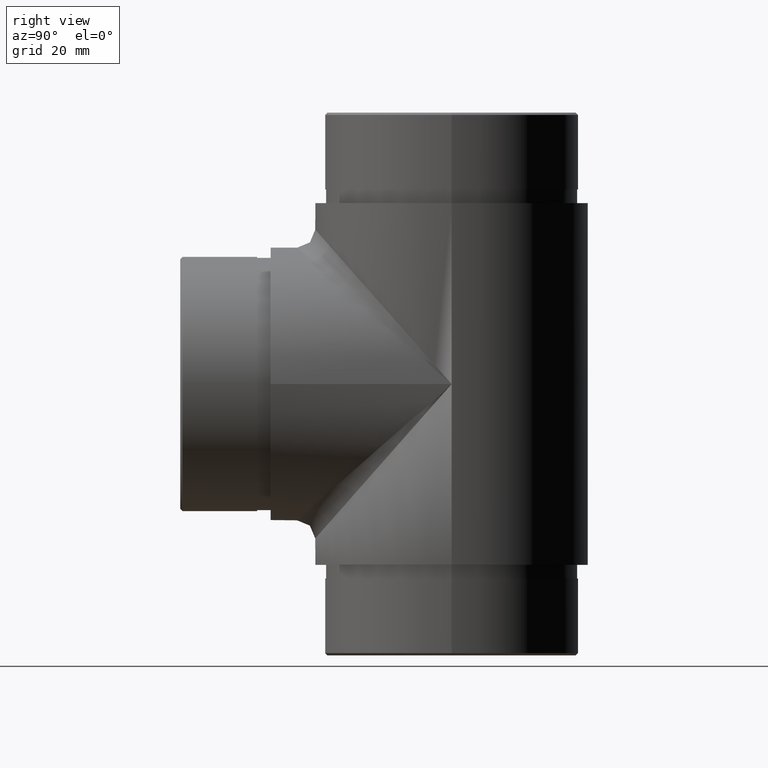
[diagram: clean part render]
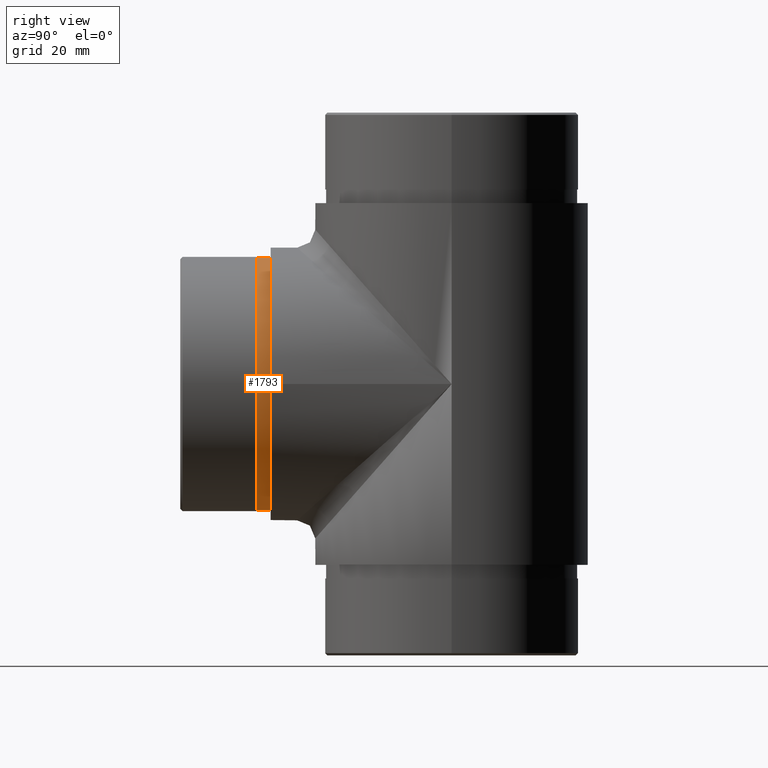
[diagram: same view with one face highlighted and labeled with its STEP entity id]
A machine part, right view. The second image highlights one B-rep face of the part: STEP entity #1793.
In plain terms, the highlighted cylindrical surface (bore or boss wall) has radius 27.9 mm, axis along (-0, 1, -0).
Its self-contained STEP definition (entity closure, byte-faithful):
#380 = CARTESIAN_POINT ( 'NONE',  ( 0.0000000000000000000, 20.00000000000000000, 27.89999999999999900 ) ) ;
#865 = EDGE_CURVE ( 'NONE', #10295, #10295, #2266, .T. ) ;
#1167 = CARTESIAN_POINT ( 'NONE',  ( 0.0000000000000000000, 17.00000000000000000, 0.0000000000000000000 ) ) ;
#1595 = AXIS2_PLACEMENT_3D ( 'NONE', #3104, #9912, #6025 ) ;
#1793 = ADVANCED_FACE ( 'NONE', ( #11960, #4394 ), #7281, .T. ) ;
#1810 = VERTEX_POINT ( 'NONE', #2202 ) ;
#2017 = DIRECTION ( 'NONE',  ( 0.0000000000000000000, 0.0000000000000000000, -1.000000000000000000 ) ) ;
#2202 = CARTESIAN_POINT ( 'NONE',  ( 0.0000000000000000000, 17.00000000000000000, -27.89999999999999900 ) ) ;
#2266 = CIRCLE ( 'NONE', #11701, 27.89999999999999900 ) ;
#2508 = CIRCLE ( 'NONE', #9624, 27.89999999999999900 ) ;
#3104 = CARTESIAN_POINT ( 'NONE',  ( 0.0000000000000000000, 17.00000000000000000, 0.0000000000000000000 ) ) ;
#4394 = FACE_OUTER_BOUND ( 'NONE', #11605, .T. ) ;
#6025 = DIRECTION ( 'NONE',  ( 0.0000000000000000000, 0.0000000000000000000, 1.000000000000000000 ) ) ;
#7093 = DIRECTION ( 'NONE',  ( -0.0000000000000000000, -1.000000000000000000, -0.0000000000000000000 ) ) ;
#7241 = EDGE_CURVE ( 'NONE', #1810, #1810, #2508, .T. ) ;
#7281 = CYLINDRICAL_SURFACE ( 'NONE', #1595, 27.89999999999999900 ) ;
#7613 = ORIENTED_EDGE ( 'NONE', *, *, #7241, .F. ) ;
#8072 = ORIENTED_EDGE ( 'NONE', *, *, #865, .T. ) ;
#9624 = AXIS2_PLACEMENT_3D ( 'NONE', #1167, #11749, #2017 ) ;
#9912 = DIRECTION ( 'NONE',  ( -0.0000000000000000000, 1.000000000000000000, -0.0000000000000000000 ) ) ;
#10295 = VERTEX_POINT ( 'NONE', #380 ) ;
#11004 = DIRECTION ( 'NONE',  ( 0.0000000000000000000, 0.0000000000000000000, 1.000000000000000000 ) ) ;
#11352 = EDGE_LOOP ( 'NONE', ( #7613 ) ) ;
#11605 = EDGE_LOOP ( 'NONE', ( #8072 ) ) ;
#11701 = AXIS2_PLACEMENT_3D ( 'NONE', #11870, #7093, #11004 ) ;
#11749 = DIRECTION ( 'NONE',  ( 0.0000000000000000000, -1.000000000000000000, 0.0000000000000000000 ) ) ;
#11870 = CARTESIAN_POINT ( 'NONE',  ( 0.0000000000000000000, 20.00000000000000000, 0.0000000000000000000 ) ) ;
#11960 = FACE_OUTER_BOUND ( 'NONE', #11352, .T. ) ;